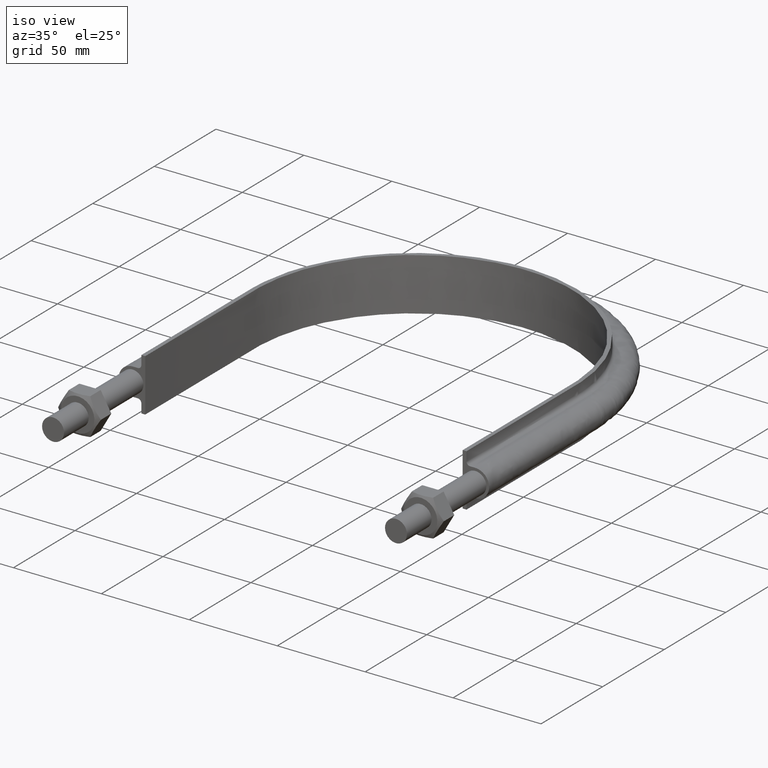
[diagram: clean part render]
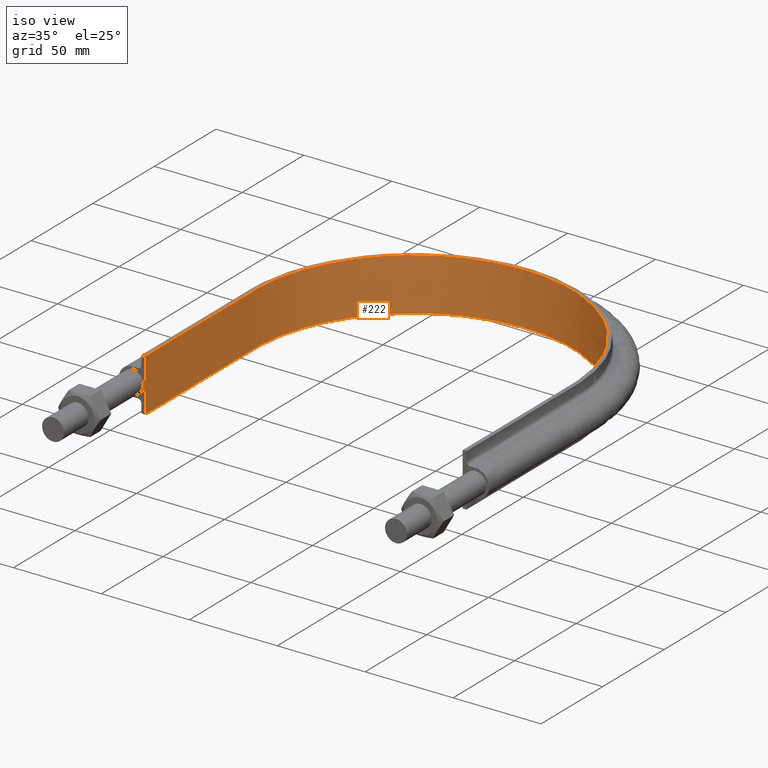
[diagram: tour spotlight — one face highlighted and labeled with its STEP entity id]
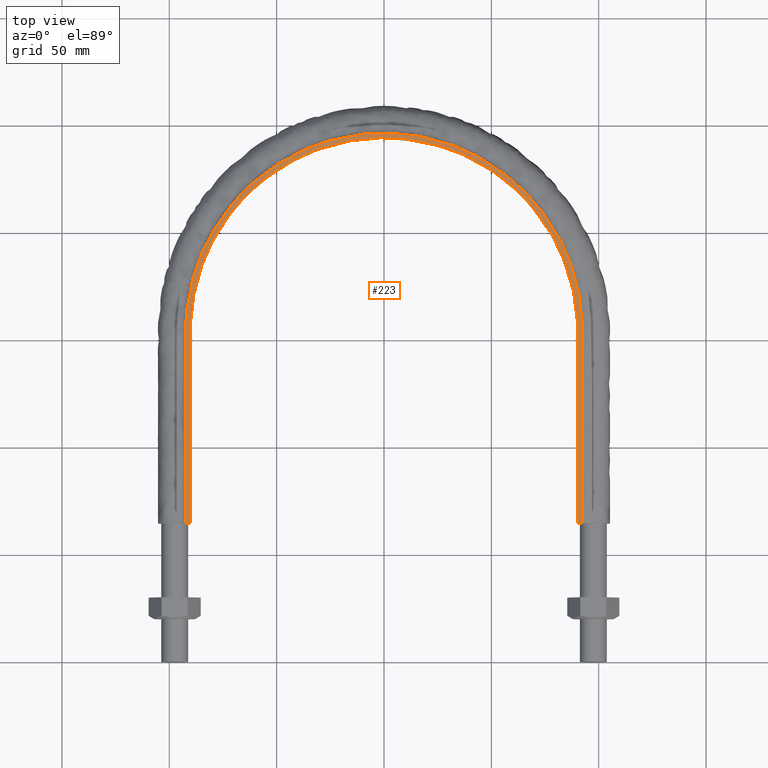
[diagram: tour spotlight — one face highlighted and labeled with its STEP entity id]
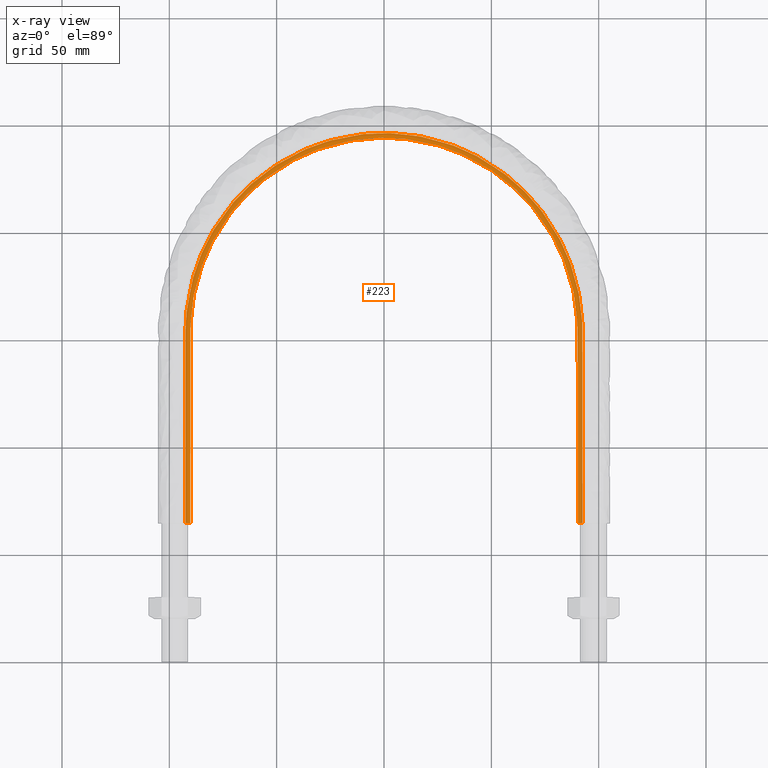
[diagram: x-ray of the same camera — body ghosted, this tour face saturated]
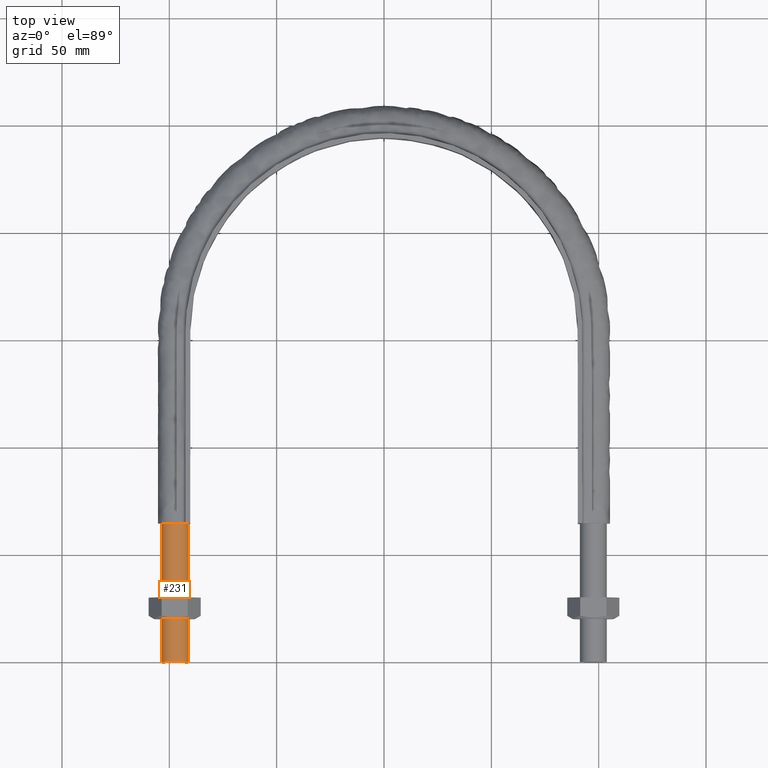
[diagram: tour spotlight — one face highlighted and labeled with its STEP entity id]
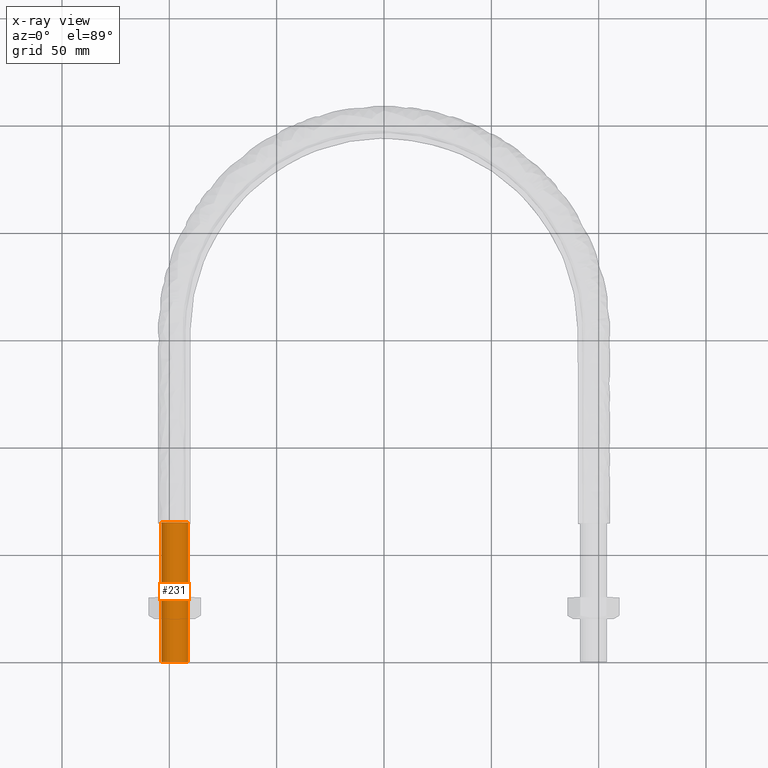
[diagram: x-ray of the same camera — body ghosted, this tour face saturated]
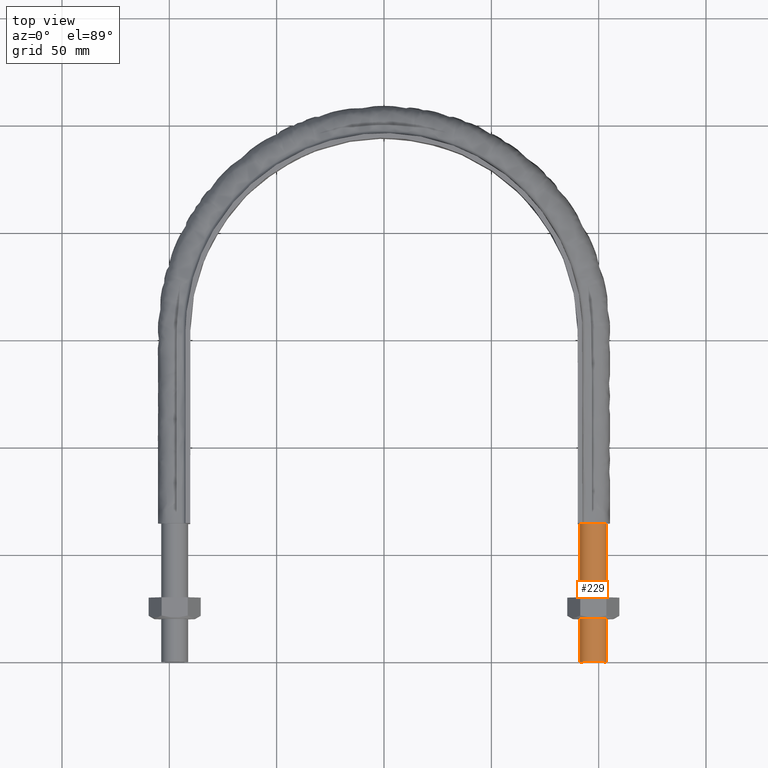
[diagram: tour spotlight — one face highlighted and labeled with its STEP entity id]
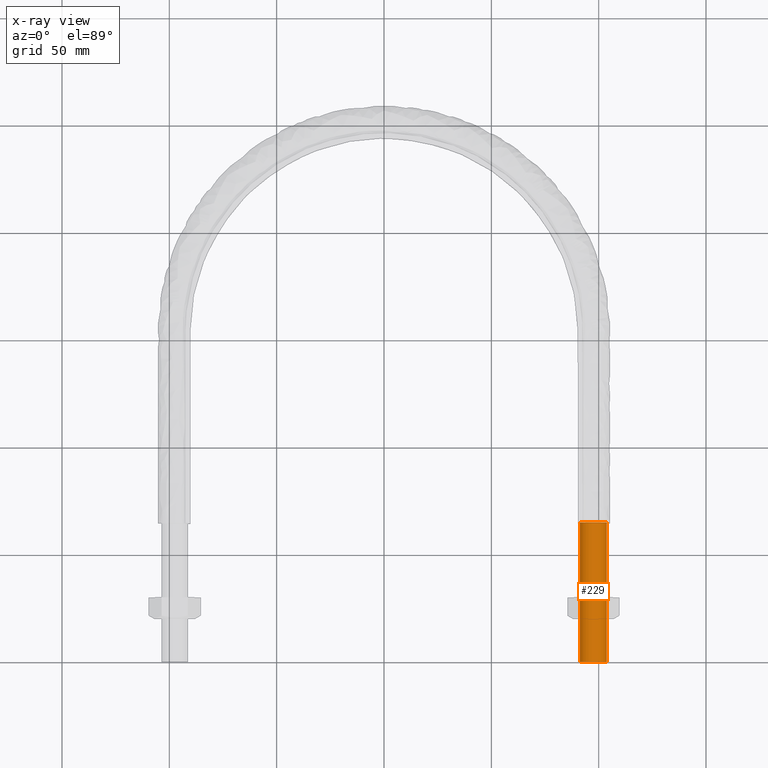
[diagram: x-ray of the same camera — body ghosted, this tour face saturated]
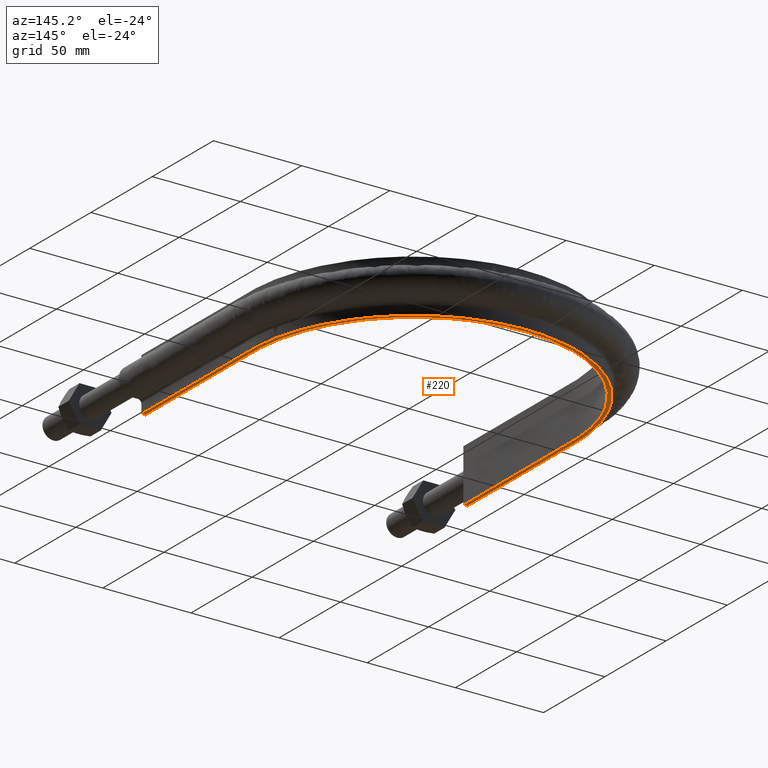
[diagram: tour spotlight — one face highlighted and labeled with its STEP entity id]
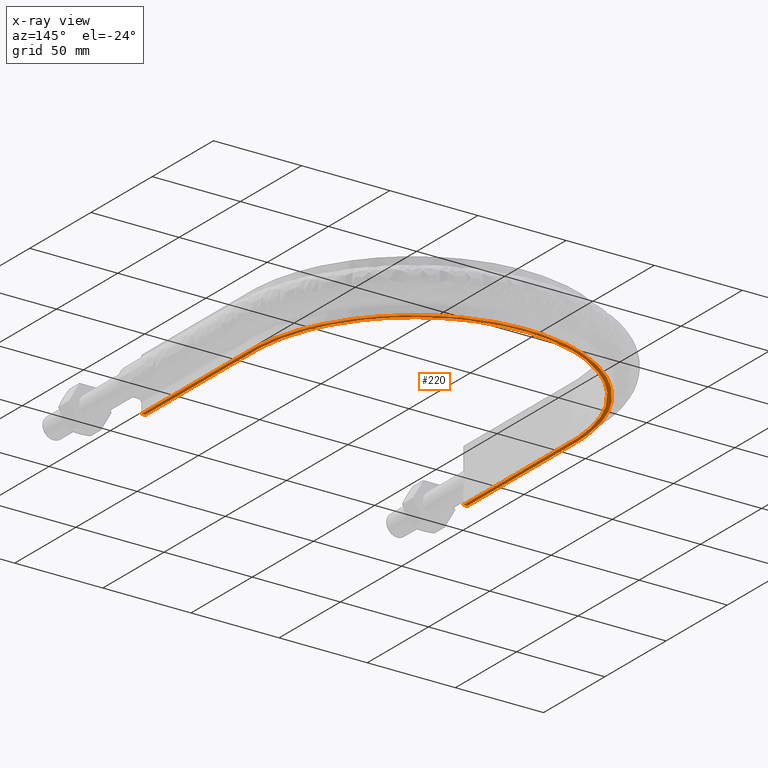
[diagram: x-ray of the same camera — body ghosted, this tour face saturated]
A machine part: a face-by-face anatomy tour. The part has 38 B-rep faces; the first image is the clean iso view, then the 5 largest visible faces are spotlighted one at a time (largest first), each with its STEP entity span.

Face 1 — iso view, entity #222. In plain terms, the highlighted face is a SurfaceOfExtrusion surface.
Definition (entity closure, byte-faithful):
#222 = ADVANCED_FACE( '', ( #266 ), #267, .T. );
#266 = FACE_OUTER_BOUND( '', #362, .T. );
#267 = SURFACE_OF_LINEAR_EXTRUSION( '', #363, #364 );
#362 = EDGE_LOOP( '', ( #1372, #1373, #1374, #1375 ) );
#363 = B_SPLINE_CURVE_WITH_KNOTS( '', 3, ( #1376, #1377, #1378, #1379, #1380, #1381, #1382, #1383, #1384, #1385, #1386, #1387, #1388, #1389, #1390, #1391, #1392 ), .UNSPECIFIED., .F., .F., ( 4, 3, 1, 1, 1, 1, 1, 1, 1, 3, 4 ), ( -10.0000000000000, -9.00000000000000, -8.00000000000000, -7.00000000000000, -6.00000000000000, -5.00000000000000, -4.00000000000000, -3.00000000000000, -2.00000000000000, -1.00000000000000, 0.000000000000000 ), .UNSPECIFIED. );
#364 = VECTOR( '', #1393, 1000.00000000000 );
#1372 = ORIENTED_EDGE( '', *, *, #1613, .F. );
#1373 = ORIENTED_EDGE( '', *, *, #1602, .F. );
#1374 = ORIENTED_EDGE( '', *, *, #1606, .T. );
#1375 = ORIENTED_EDGE( '', *, *, #1610, .T. );
#1376 = CARTESIAN_POINT( '', ( -90.2500000000000, 64.5000000000001, -300.578044679617 ) );
#1377 = CARTESIAN_POINT( '', ( -90.2500000000000, 94.2500000000001, -300.578044679617 ) );
#1378 = CARTESIAN_POINT( '', ( -90.2500000000000, 124.000000000000, -300.578044679617 ) );
#1379 = CARTESIAN_POINT( '', ( -90.2500000000000, 153.750000000000, -300.578044679617 ) );
#1380 = CARTESIAN_POINT( '', ( -90.2500000000000, 165.549592940319, -300.578044679617 ) );
#1381 = CARTESIAN_POINT( '', ( -85.5508514102795, 189.192133324021, -300.578044679617 ) );
#1382 = CARTESIAN_POINT( '', ( -65.4777869188832, 219.226222581144, -300.578044679617 ) );
#1383 = CARTESIAN_POINT( '', ( -35.4363229267033, 239.301298363920, -300.578044679617 ) );
#1384 = CARTESIAN_POINT( '', ( 2.41252241155008E-015, 246.349350818040, -300.578044679617 ) );
#1385 = CARTESIAN_POINT( '', ( 35.4363229267032, 239.301298363920, -300.578044679617 ) );
#1386 = CARTESIAN_POINT( '', ( 65.4777869188831, 219.226222581144, -300.578044679617 ) );
#1387 = CARTESIAN_POINT( '', ( 85.5508514102796, 189.192133324021, -300.578044679617 ) );
#1388 = CARTESIAN_POINT( '', ( 90.2499999999999, 165.549592940319, -300.578044679617 ) );
#1389 = CARTESIAN_POINT( '', ( 90.2499999999999, 153.750000000000, -300.578044679617 ) );
#1390 = CARTESIAN_POINT( '', ( 90.2499999999999, 124.000000000000, -300.578044679617 ) );
#1391 = CARTESIAN_POINT( '', ( 90.2499999999999, 94.2500000000000, -300.578044679617 ) );
#1392 = CARTESIAN_POINT( '', ( 90.2499999999999, 64.5000000000000, -300.578044679617 ) );
#1393 = DIRECTION( '', ( 0.000000000000000, 0.000000000000000, 1.00000000000000 ) );
#1602 = EDGE_CURVE( '', #1669, #1670, #1671, .T. );
#1606 = EDGE_CURVE( '', #1669, #1677, #1678, .T. );
#1610 = EDGE_CURVE( '', #1677, #1684, #1685, .T. );
#1613 = EDGE_CURVE( '', #1670, #1684, #1689, .T. );
#1669 = VERTEX_POINT( '', #1795 );
#1670 = VERTEX_POINT( '', #1796 );
#1671 = LINE( '', #1797, #1798 );
#1677 = VERTEX_POINT( '', #1836 );
#1678 = B_SPLINE_CURVE_WITH_KNOTS( '', 3, ( #1837, #1838, #1839, #1840, #1841, #1842, #1843, #1844, #1845, #1846, #1847, #1848, #1849, #1850, #1851, #1852, #1853 ), .UNSPECIFIED., .F., .F., ( 4, 3, 1, 1, 1, 1, 1, 1, 1, 3, 4 ), ( -10.0000000000000, -9.00000000000000, -8.00000000000000, -7.00000000000000, -6.00000000000000, -5.00000000000000, -4.00000000000000, -3.00000000000000, -2.00000000000000, -1.00000000000000, 0.000000000000000 ), .UNSPECIFIED. );
#1684 = VERTEX_POINT( '', #1886 );
#1685 = LINE( '', #1887, #1888 );
#1689 = B_SPLINE_CURVE_WITH_KNOTS( '', 3, ( #1923, #1924, #1925, #1926, #1927, #1928, #1929, #1930, #1931, #1932, #1933, #1934, #1935, #1936, #1937, #1938, #1939 ), .UNSPECIFIED., .F., .F., ( 4, 3, 1, 1, 1, 1, 1, 1, 1, 3, 4 ), ( -10.0000000000000, -9.00000000000000, -8.00000000000000, -7.00000000000000, -6.00000000000000, -5.00000000000000, -4.00000000000000, -3.00000000000000, -2.00000000000000, -1.00000000000000, 0.000000000000000 ), .UNSPECIFIED. );
#1795 = CARTESIAN_POINT( '', ( -90.2499999999999, 64.5000000000003, -15.0000000000000 ) );
#1796 = CARTESIAN_POINT( '', ( -90.2499999999999, 64.5000000000003, 15.0000000000000 ) );
#1797 = CARTESIAN_POINT( '', ( -90.2500000000000, 64.5000000000001, -300.578044679617 ) );
#1798 = VECTOR( '', #2225, 1000.00000000000 );
#1836 = CARTESIAN_POINT( '', ( 90.2499999999999, 64.5000000000000, -15.0000000000002 ) );
#1837 = CARTESIAN_POINT( '', ( -90.2500000000000, 64.5000000000001, -15.0000000000001 ) );
#1838 = CARTESIAN_POINT( '', ( -90.2500000000000, 94.2500000000001, -15.0000000000001 ) );
#1839 = CARTESIAN_POINT( '', ( -90.2500000000000, 124.000000000000, -15.0000000000001 ) );
#1840 = CARTESIAN_POINT( '', ( -90.2500000000000, 153.750000000000, -15.0000000000001 ) );
#1841 = CARTESIAN_POINT( '', ( -90.2500000000000, 165.549592940319, -15.0000000000001 ) );
#1842 = CARTESIAN_POINT( '', ( -85.5508514102795, 189.192133324021, -15.0000000000001 ) );
#1843 = CARTESIAN_POINT( '', ( -65.4777869188832, 219.226222581144, -15.0000000000001 ) );
#1844 = CARTESIAN_POINT( '', ( -35.4363229267033, 239.301298363920, -15.0000000000001 ) );
#1845 = CARTESIAN_POINT( '', ( 2.41252241155008E-015, 246.349350818040, -15.0000000000001 ) );
#1846 = CARTESIAN_POINT( '', ( 35.4363229267032, 239.301298363920, -15.0000000000001 ) );
#1847 = CARTESIAN_POINT( '', ( 65.4777869188831, 219.226222581144, -15.0000000000001 ) );
#1848 = CARTESIAN_POINT( '', ( 85.5508514102796, 189.192133324021, -15.0000000000001 ) );
#1849 = CARTESIAN_POINT( '', ( 90.2499999999999, 165.549592940319, -15.0000000000001 ) );
#1850 = CARTESIAN_POINT( '', ( 90.2499999999999, 153.750000000000, -15.0000000000001 ) );
#1851 = CARTESIAN_POINT( '', ( 90.2499999999999, 124.000000000000, -15.0000000000001 ) );
#1852 = CARTESIAN_POINT( '', ( 90.2499999999999, 94.2500000000000, -15.0000000000001 ) );
#1853 = CARTESIAN_POINT( '', ( 90.2499999999999, 64.5000000000000, -15.0000000000001 ) );
#1886 = CARTESIAN_POINT( '', ( 90.2500000000002, 64.5000000000003, 15.0000000000000 ) );
#1887 = CARTESIAN_POINT( '', ( 90.2499999999999, 64.5000000000000, -300.578044679617 ) );
#1888 = VECTOR( '', #2229, 1000.00000000000 );
#1923 = CARTESIAN_POINT( '', ( -90.2500000000000, 64.5000000000001, 14.9999999999999 ) );
#1924 = CARTESIAN_POINT( '', ( -90.2500000000000, 94.2500000000001, 14.9999999999999 ) );
#1925 = CARTESIAN_POINT( '', ( -90.2500000000000, 124.000000000000, 14.9999999999999 ) );
#1926 = CARTESIAN_POINT( '', ( -90.2500000000000, 153.750000000000, 14.9999999999999 ) );
#1927 = CARTESIAN_POINT( '', ( -90.2500000000000, 165.549592940319, 14.9999999999999 ) );
#1928 = CARTESIAN_POINT( '', ( -85.5508514102795, 189.192133324021, 14.9999999999999 ) );
#1929 = CARTESIAN_POINT( '', ( -65.4777869188832, 219.226222581144, 14.9999999999999 ) );
#1930 = CARTESIAN_POINT( '', ( -35.4363229267033, 239.301298363920, 14.9999999999999 ) );
#1931 = CARTESIAN_POINT( '', ( 2.41252241155008E-015, 246.349350818040, 14.9999999999999 ) );
#1932 = CARTESIAN_POINT( '', ( 35.4363229267032, 239.301298363920, 14.9999999999999 ) );
#1933 = CARTESIAN_POINT( '', ( 65.4777869188831, 219.226222581144, 14.9999999999999 ) );
#1934 = CARTESIAN_POINT( '', ( 85.5508514102796, 189.192133324021, 14.9999999999999 ) );
#1935 = CARTESIAN_POINT( '', ( 90.2499999999999, 165.549592940319, 14.9999999999999 ) );
#1936 = CARTESIAN_POINT( '', ( 90.2499999999999, 153.750000000000, 14.9999999999999 ) );
#1937 = CARTESIAN_POINT( '', ( 90.2499999999999, 124.000000000000, 14.9999999999999 ) );
#1938 = CARTESIAN_POINT( '', ( 90.2499999999999, 94.2500000000000, 14.9999999999999 ) );
#1939 = CARTESIAN_POINT( '', ( 90.2499999999999, 64.5000000000000, 14.9999999999999 ) );
#2225 = DIRECTION( '', ( 0.000000000000000, 0.000000000000000, 1.00000000000000 ) );
#2229 = DIRECTION( '', ( 0.000000000000000, 0.000000000000000, 1.00000000000000 ) );

Face 2 — top view, entity #223. An x-ray twin of the same camera follows (body ghosted, this face saturated) — the face is partly hidden behind the body. In plain terms, the highlighted planar face has unit normal (0, 0, 1).
Definition (entity closure, byte-faithful):
#223 = ADVANCED_FACE( '', ( #268 ), #269, .T. );
#268 = FACE_OUTER_BOUND( '', #365, .T. );
#269 = PLANE( '', #366 );
#365 = EDGE_LOOP( '', ( #1394, #1395, #1396, #1397 ) );
#366 = AXIS2_PLACEMENT_3D( '', #1398, #1399, #1400 );
#1394 = ORIENTED_EDGE( '', *, *, #1603, .T. );
#1395 = ORIENTED_EDGE( '', *, *, #1613, .T. );
#1396 = ORIENTED_EDGE( '', *, *, #1612, .T. );
#1397 = ORIENTED_EDGE( '', *, *, #1614, .F. );
#1398 = CARTESIAN_POINT( '', ( 150.000000000000, 364.500000000000, 15.0000000000000 ) );
#1399 = DIRECTION( '', ( 0.000000000000000, 0.000000000000000, 1.00000000000000 ) );
#1400 = DIRECTION( '', ( 1.22460635382238E-016, 1.00000000000000, 0.000000000000000 ) );
#1603 = EDGE_CURVE( '', #1672, #1670, #1673, .T. );
#1612 = EDGE_CURVE( '', #1684, #1686, #1688, .T. );
#1613 = EDGE_CURVE( '', #1670, #1684, #1689, .T. );
#1614 = EDGE_CURVE( '', #1672, #1686, #1690, .F. );
#1670 = VERTEX_POINT( '', #1796 );
#1672 = VERTEX_POINT( '', #1799 );
#1673 = LINE( '', #1800, #1801 );
#1684 = VERTEX_POINT( '', #1886 );
#1686 = VERTEX_POINT( '', #1889 );
#1688 = LINE( '', #1921, #1922 );
#1689 = B_SPLINE_CURVE_WITH_KNOTS( '', 3, ( #1923, #1924, #1925, #1926, #1927, #1928, #1929, #1930, #1931, #1932, #1933, #1934, #1935, #1936, #1937, #1938, #1939 ), .UNSPECIFIED., .F., .F., ( 4, 3, 1, 1, 1, 1, 1, 1, 1, 3, 4 ), ( -10.0000000000000, -9.00000000000000, -8.00000000000000, -7.00000000000000, -6.00000000000000, -5.00000000000000, -4.00000000000000, -3.00000000000000, -2.00000000000000, -1.00000000000000, 0.000000000000000 ), .UNSPECIFIED. );
#1690 = B_SPLINE_CURVE_WITH_KNOTS( '', 3, ( #1940, #1941, #1942, #1943, #1944, #1945, #1946, #1947, #1948, #1949, #1950, #1951, #1952, #1953, #1954, #1955, #1956 ), .UNSPECIFIED., .F., .F., ( 4, 3, 1, 1, 1, 1, 1, 1, 1, 3, 4 ), ( 0.000000000000000, 1.00000000000000, 2.00000000000000, 3.00000000000000, 4.00000000000000, 5.00000000000000, 6.00000000000000, 7.00000000000000, 8.00000000000000, 9.00000000000000, 10.0000000000000 ), .UNSPECIFIED. );
#1796 = CARTESIAN_POINT( '', ( -90.2499999999999, 64.5000000000003, 15.0000000000000 ) );
#1799 = CARTESIAN_POINT( '', ( -92.4499999999999, 64.5000000000003, 15.0000000000000 ) );
#1800 = CARTESIAN_POINT( '', ( -150.000000000000, 64.5000000000003, 15.0000000000000 ) );
#1801 = VECTOR( '', #2226, 1000.00000000000 );
#1886 = CARTESIAN_POINT( '', ( 90.2500000000002, 64.5000000000003, 15.0000000000000 ) );
#1889 = CARTESIAN_POINT( '', ( 92.4500000000002, 64.5000000000003, 15.0000000000000 ) );
#1921 = CARTESIAN_POINT( '', ( -150.000000000000, 64.5000000000003, 15.0000000000000 ) );
#1922 = VECTOR( '', #2230, 1000.00000000000 );
#1923 = CARTESIAN_POINT( '', ( -90.2500000000000, 64.5000000000001, 14.9999999999999 ) );
#1924 = CARTESIAN_POINT( '', ( -90.2500000000000, 94.2500000000001, 14.9999999999999 ) );
#1925 = CARTESIAN_POINT( '', ( -90.2500000000000, 124.000000000000, 14.9999999999999 ) );
#1926 = CARTESIAN_POINT( '', ( -90.2500000000000, 153.750000000000, 14.9999999999999 ) );
#1927 = CARTESIAN_POINT( '', ( -90.2500000000000, 165.549592940319, 14.9999999999999 ) );
#1928 = CARTESIAN_POINT( '', ( -85.5508514102795, 189.192133324021, 14.9999999999999 ) );
#1929 = CARTESIAN_POINT( '', ( -65.4777869188832, 219.226222581144, 14.9999999999999 ) );
#1930 = CARTESIAN_POINT( '', ( -35.4363229267033, 239.301298363920, 14.9999999999999 ) );
#1931 = CARTESIAN_POINT( '', ( 2.41252241155008E-015, 246.349350818040, 14.9999999999999 ) );
#1932 = CARTESIAN_POINT( '', ( 35.4363229267032, 239.301298363920, 14.9999999999999 ) );
#1933 = CARTESIAN_POINT( '', ( 65.4777869188831, 219.226222581144, 14.9999999999999 ) );
#1934 = CARTESIAN_POINT( '', ( 85.5508514102796, 189.192133324021, 14.9999999999999 ) );
#1935 = CARTESIAN_POINT( '', ( 90.2499999999999, 165.549592940319, 14.9999999999999 ) );
#1936 = CARTESIAN_POINT( '', ( 90.2499999999999, 153.750000000000, 14.9999999999999 ) );
#1937 = CARTESIAN_POINT( '', ( 90.2499999999999, 124.000000000000, 14.9999999999999 ) );
#1938 = CARTESIAN_POINT( '', ( 90.2499999999999, 94.2500000000000, 14.9999999999999 ) );
#1939 = CARTESIAN_POINT( '', ( 90.2499999999999, 64.5000000000000, 14.9999999999999 ) );
#1940 = CARTESIAN_POINT( '', ( 92.4500000000000, 64.5000000000000, 15.0000000000000 ) );
#1941 = CARTESIAN_POINT( '', ( 92.4500000000000, 94.2500000000000, 15.0000000000000 ) );
#1942 = CARTESIAN_POINT( '', ( 92.4500000000000, 124.000000000000, 15.0000000000000 ) );
#1943 = CARTESIAN_POINT( '', ( 92.4500000000000, 153.750000000000, 15.0000000000000 ) );
#1944 = CARTESIAN_POINT( '', ( 92.4500000000000, 165.841331079143, 15.0000000000000 ) );
#1945 = CARTESIAN_POINT( '', ( 87.6363015277601, 190.054191891286, 15.0000000000000 ) );
#1946 = CARTESIAN_POINT( '', ( 67.0739213368504, 220.822831694701, 15.0000000000000 ) );
#1947 = CARTESIAN_POINT( '', ( 36.3001446490162, 241.386612854088, 15.0000000000000 ) );
#1948 = CARTESIAN_POINT( '', ( 5.47306623188967E-014, 248.606693572956, 15.0000000000000 ) );
#1949 = CARTESIAN_POINT( '', ( -36.3001446490162, 241.386612854089, 15.0000000000000 ) );
#1950 = CARTESIAN_POINT( '', ( -67.0739213368504, 220.822831694701, 15.0000000000000 ) );
#1951 = CARTESIAN_POINT( '', ( -87.6363015277601, 190.054191891286, 15.0000000000000 ) );
#1952 = CARTESIAN_POINT( '', ( -92.4500000000000, 165.841331079143, 15.0000000000000 ) );
#1953 = CARTESIAN_POINT( '', ( -92.4500000000000, 153.750000000000, 15.0000000000000 ) );
#1954 = CARTESIAN_POINT( '', ( -92.4499999999999, 124.000000000000, 15.0000000000000 ) );
#1955 = CARTESIAN_POINT( '', ( -92.4499999999999, 94.2500000000000, 15.0000000000000 ) );
#1956 = CARTESIAN_POINT( '', ( -92.4500000000000, 64.5000000000001, 15.0000000000000 ) );
#2226 = DIRECTION( '', ( 1.00000000000000, -1.22460635382238E-016, 0.000000000000000 ) );
#2230 = DIRECTION( '', ( 1.00000000000000, -1.22460635382238E-016, 0.000000000000000 ) );

Face 3 — top view, entity #231. An x-ray twin of the same camera follows (body ghosted, this face saturated) — the face is partly hidden behind the body. In plain terms, the highlighted cylindrical surface (bore or boss wall) has radius 6.25 mm, axis along (0, 1, 0).
Definition (entity closure, byte-faithful):
#231 = ADVANCED_FACE( '', ( #288, #289 ), #290, .T. );
#288 = FACE_OUTER_BOUND( '', #1283, .T. );
#289 = FACE_OUTER_BOUND( '', #1284, .T. );
#290 = CYLINDRICAL_SURFACE( '', #1285, 6.25000000000001 );
#1283 = EDGE_LOOP( '', ( #1427 ) );
#1284 = EDGE_LOOP( '', ( #1428 ) );
#1285 = AXIS2_PLACEMENT_3D( '', #1429, #1430, #1431 );
#1427 = ORIENTED_EDGE( '', *, *, #1620, .T. );
#1428 = ORIENTED_EDGE( '', *, *, #1619, .F. );
#1429 = CARTESIAN_POINT( '', ( -97.5000000000000, 65.0000000000000, 1.19399119497682E-014 ) );
#1430 = DIRECTION( '', ( 1.22460635382238E-016, 1.00000000000000, 1.83690953073357E-016 ) );
#1431 = DIRECTION( '', ( -1.00000000000000, 1.22460635382238E-016, 0.000000000000000 ) );
#1619 = EDGE_CURVE( '', #1699, #1699, #1700, .T. );
#1620 = EDGE_CURVE( '', #1701, #1701, #1702, .T. );
#1699 = VERTEX_POINT( '', #1985 );
#1700 = CIRCLE( '', #1986, 6.25000000000001 );
#1701 = VERTEX_POINT( '', #1987 );
#1702 = CIRCLE( '', #1988, 6.25000000000001 );
#1985 = CARTESIAN_POINT( '', ( -103.750000000000, 1.27052909209072E-014, 0.000000000000000 ) );
#1986 = AXIS2_PLACEMENT_3D( '', #2237, #2238, #2239 );
#1987 = CARTESIAN_POINT( '', ( -103.750000000000, 65.0000000000000, 1.19399119497682E-014 ) );
#1988 = AXIS2_PLACEMENT_3D( '', #2240, #2241, #2242 );
#2237 = CARTESIAN_POINT( '', ( -97.5000000000000, 1.19399119497682E-014, 0.000000000000000 ) );
#2238 = DIRECTION( '', ( -1.22460635382238E-016, -1.00000000000000, -1.83690953073357E-016 ) );
#2239 = DIRECTION( '', ( -1.00000000000000, 1.22460635382238E-016, 0.000000000000000 ) );
#2240 = CARTESIAN_POINT( '', ( -97.5000000000000, 65.0000000000000, 1.19399119497682E-014 ) );
#2241 = DIRECTION( '', ( -1.22460635382238E-016, -1.00000000000000, -1.83690953073357E-016 ) );
#2242 = DIRECTION( '', ( -1.00000000000000, 1.22460635382238E-016, 0.000000000000000 ) );

Face 4 — top view, entity #229. An x-ray twin of the same camera follows (body ghosted, this face saturated) — the face is partly hidden behind the body. In plain terms, the highlighted cylindrical surface (bore or boss wall) has radius 6.25 mm, axis along (0, 1, 0).
Definition (entity closure, byte-faithful):
#229 = ADVANCED_FACE( '', ( #283, #284 ), #285, .T. );
#283 = FACE_OUTER_BOUND( '', #1278, .T. );
#284 = FACE_OUTER_BOUND( '', #1279, .T. );
#285 = CYLINDRICAL_SURFACE( '', #1280, 6.25000000000001 );
#1278 = EDGE_LOOP( '', ( #1418 ) );
#1279 = EDGE_LOOP( '', ( #1419 ) );
#1280 = AXIS2_PLACEMENT_3D( '', #1420, #1421, #1422 );
#1418 = ORIENTED_EDGE( '', *, *, #1617, .T. );
#1419 = ORIENTED_EDGE( '', *, *, #1618, .F. );
#1420 = CARTESIAN_POINT( '', ( 97.5000000000000, 65.0000000000000, 1.19399119497682E-014 ) );
#1421 = DIRECTION( '', ( 1.22460635382238E-016, 1.00000000000000, 1.83690953073357E-016 ) );
#1422 = DIRECTION( '', ( -1.00000000000000, 1.22460635382238E-016, 0.000000000000000 ) );
#1617 = EDGE_CURVE( '', #1695, #1695, #1696, .T. );
#1618 = EDGE_CURVE( '', #1697, #1697, #1698, .T. );
#1695 = VERTEX_POINT( '', #1981 );
#1696 = CIRCLE( '', #1982, 6.25000000000001 );
#1697 = VERTEX_POINT( '', #1983 );
#1698 = CIRCLE( '', #1984, 6.25000000000001 );
#1981 = CARTESIAN_POINT( '', ( 91.2500000000000, 65.0000000000000, 1.19399119497682E-014 ) );
#1982 = AXIS2_PLACEMENT_3D( '', #2231, #2232, #2233 );
#1983 = CARTESIAN_POINT( '', ( 91.2500000000000, -1.11745329786292E-014, 0.000000000000000 ) );
#1984 = AXIS2_PLACEMENT_3D( '', #2234, #2235, #2236 );
#2231 = CARTESIAN_POINT( '', ( 97.5000000000000, 65.0000000000000, 1.19399119497682E-014 ) );
#2232 = DIRECTION( '', ( -1.22460635382238E-016, -1.00000000000000, -1.83690953073357E-016 ) );
#2233 = DIRECTION( '', ( -1.00000000000000, 1.22460635382238E-016, 0.000000000000000 ) );
#2234 = CARTESIAN_POINT( '', ( 97.5000000000000, -1.19399119497682E-014, 0.000000000000000 ) );
#2235 = DIRECTION( '', ( -1.22460635382238E-016, -1.00000000000000, -1.83690953073357E-016 ) );
#2236 = DIRECTION( '', ( -1.00000000000000, 1.22460635382238E-016, 0.000000000000000 ) );

Face 5 — auxiliary view, entity #220. An x-ray twin of the same camera follows (body ghosted, this face saturated) — the face is partly hidden behind the body. In plain terms, the highlighted planar face has unit normal (0, 0, 1).
Definition (entity closure, byte-faithful):
#220 = ADVANCED_FACE( '', ( #261 ), #262, .F. );
#261 = FACE_OUTER_BOUND( '', #357, .T. );
#262 = PLANE( '', #358 );
#357 = EDGE_LOOP( '', ( #1357, #1358, #1359, #1360 ) );
#358 = AXIS2_PLACEMENT_3D( '', #1361, #1362, #1363 );
#1357 = ORIENTED_EDGE( '', *, *, #1606, .F. );
#1358 = ORIENTED_EDGE( '', *, *, #1605, .F. );
#1359 = ORIENTED_EDGE( '', *, *, #1607, .F. );
#1360 = ORIENTED_EDGE( '', *, *, #1608, .F. );
#1361 = CARTESIAN_POINT( '', ( 150.000000000000, 364.500000000000, -15.0000000000000 ) );
#1362 = DIRECTION( '', ( 0.000000000000000, 0.000000000000000, 1.00000000000000 ) );
#1363 = DIRECTION( '', ( 1.22460635382238E-016, 1.00000000000000, 0.000000000000000 ) );
#1605 = EDGE_CURVE( '', #1674, #1669, #1676, .T. );
#1606 = EDGE_CURVE( '', #1669, #1677, #1678, .T. );
#1607 = EDGE_CURVE( '', #1679, #1674, #1680, .T. );
#1608 = EDGE_CURVE( '', #1677, #1679, #1681, .T. );
#1669 = VERTEX_POINT( '', #1795 );
#1674 = VERTEX_POINT( '', #1802 );
#1676 = LINE( '', #1834, #1835 );
#1677 = VERTEX_POINT( '', #1836 );
#1678 = B_SPLINE_CURVE_WITH_KNOTS( '', 3, ( #1837, #1838, #1839, #1840, #1841, #1842, #1843, #1844, #1845, #1846, #1847, #1848, #1849, #1850, #1851, #1852, #1853 ), .UNSPECIFIED., .F., .F., ( 4, 3, 1, 1, 1, 1, 1, 1, 1, 3, 4 ), ( -10.0000000000000, -9.00000000000000, -8.00000000000000, -7.00000000000000, -6.00000000000000, -5.00000000000000, -4.00000000000000, -3.00000000000000, -2.00000000000000, -1.00000000000000, 0.000000000000000 ), .UNSPECIFIED. );
#1679 = VERTEX_POINT( '', #1854 );
#1680 = B_SPLINE_CURVE_WITH_KNOTS( '', 3, ( #1855, #1856, #1857, #1858, #1859, #1860, #1861, #1862, #1863, #1864, #1865, #1866, #1867, #1868, #1869, #1870, #1871 ), .UNSPECIFIED., .F., .F., ( 4, 3, 1, 1, 1, 1, 1, 1, 1, 3, 4 ), ( 0.000000000000000, 1.00000000000000, 2.00000000000000, 3.00000000000000, 4.00000000000000, 5.00000000000000, 6.00000000000000, 7.00000000000000, 8.00000000000000, 9.00000000000000, 10.0000000000000 ), .UNSPECIFIED. );
#1681 = LINE( '', #1872, #1873 );
#1795 = CARTESIAN_POINT( '', ( -90.2499999999999, 64.5000000000003, -15.0000000000000 ) );
#1802 = CARTESIAN_POINT( '', ( -92.4499999999999, 64.5000000000003, -15.0000000000000 ) );
#1834 = CARTESIAN_POINT( '', ( -150.000000000000, 64.5000000000003, -15.0000000000000 ) );
#1835 = VECTOR( '', #2227, 1000.00000000000 );
#1836 = CARTESIAN_POINT( '', ( 90.2499999999999, 64.5000000000000, -15.0000000000002 ) );
#1837 = CARTESIAN_POINT( '', ( -90.2500000000000, 64.5000000000001, -15.0000000000001 ) );
#1838 = CARTESIAN_POINT( '', ( -90.2500000000000, 94.2500000000001, -15.0000000000001 ) );
#1839 = CARTESIAN_POINT( '', ( -90.2500000000000, 124.000000000000, -15.0000000000001 ) );
#1840 = CARTESIAN_POINT( '', ( -90.2500000000000, 153.750000000000, -15.0000000000001 ) );
#1841 = CARTESIAN_POINT( '', ( -90.2500000000000, 165.549592940319, -15.0000000000001 ) );
#1842 = CARTESIAN_POINT( '', ( -85.5508514102795, 189.192133324021, -15.0000000000001 ) );
#1843 = CARTESIAN_POINT( '', ( -65.4777869188832, 219.226222581144, -15.0000000000001 ) );
#1844 = CARTESIAN_POINT( '', ( -35.4363229267033, 239.301298363920, -15.0000000000001 ) );
#1845 = CARTESIAN_POINT( '', ( 2.41252241155008E-015, 246.349350818040, -15.0000000000001 ) );
#1846 = CARTESIAN_POINT( '', ( 35.4363229267032, 239.301298363920, -15.0000000000001 ) );
#1847 = CARTESIAN_POINT( '', ( 65.4777869188831, 219.226222581144, -15.0000000000001 ) );
#1848 = CARTESIAN_POINT( '', ( 85.5508514102796, 189.192133324021, -15.0000000000001 ) );
#1849 = CARTESIAN_POINT( '', ( 90.2499999999999, 165.549592940319, -15.0000000000001 ) );
#1850 = CARTESIAN_POINT( '', ( 90.2499999999999, 153.750000000000, -15.0000000000001 ) );
#1851 = CARTESIAN_POINT( '', ( 90.2499999999999, 124.000000000000, -15.0000000000001 ) );
#1852 = CARTESIAN_POINT( '', ( 90.2499999999999, 94.2500000000000, -15.0000000000001 ) );
#1853 = CARTESIAN_POINT( '', ( 90.2499999999999, 64.5000000000000, -15.0000000000001 ) );
#1854 = CARTESIAN_POINT( '', ( 92.4500000000002, 64.5000000000003, -15.0000000000000 ) );
#1855 = CARTESIAN_POINT( '', ( 92.4500000000000, 64.5000000000000, -15.0000000000000 ) );
#1856 = CARTESIAN_POINT( '', ( 92.4500000000000, 94.2500000000000, -15.0000000000000 ) );
#1857 = CARTESIAN_POINT( '', ( 92.4500000000000, 124.000000000000, -15.0000000000000 ) );
#1858 = CARTESIAN_POINT( '', ( 92.4500000000000, 153.750000000000, -15.0000000000000 ) );
#1859 = CARTESIAN_POINT( '', ( 92.4500000000000, 165.841331079143, -15.0000000000000 ) );
#1860 = CARTESIAN_POINT( '', ( 87.6363015277602, 190.054191891286, -15.0000000000000 ) );
#1861 = CARTESIAN_POINT( '', ( 67.0739213368505, 220.822831694701, -15.0000000000000 ) );
#1862 = CARTESIAN_POINT( '', ( 36.3001446490162, 241.386612854088, -15.0000000000000 ) );
#1863 = CARTESIAN_POINT( '', ( 6.16695562228040E-014, 248.606693572956, -15.0000000000000 ) );
#1864 = CARTESIAN_POINT( '', ( -36.3001446490162, 241.386612854089, -15.0000000000000 ) );
#1865 = CARTESIAN_POINT( '', ( -67.0739213368504, 220.822831694701, -15.0000000000000 ) );
#1866 = CARTESIAN_POINT( '', ( -87.6363015277601, 190.054191891286, -15.0000000000000 ) );
#1867 = CARTESIAN_POINT( '', ( -92.4500000000000, 165.841331079143, -15.0000000000000 ) );
#1868 = CARTESIAN_POINT( '', ( -92.4500000000000, 153.750000000000, -15.0000000000000 ) );
#1869 = CARTESIAN_POINT( '', ( -92.4499999999999, 124.000000000000, -15.0000000000000 ) );
#1870 = CARTESIAN_POINT( '', ( -92.4499999999999, 94.2500000000000, -15.0000000000000 ) );
#1871 = CARTESIAN_POINT( '', ( -92.4500000000000, 64.5000000000001, -15.0000000000000 ) );
#1872 = CARTESIAN_POINT( '', ( -150.000000000000, 64.5000000000003, -15.0000000000000 ) );
#1873 = VECTOR( '', #2228, 1000.00000000000 );
#2227 = DIRECTION( '', ( 1.00000000000000, -1.22460635382238E-016, 0.000000000000000 ) );
#2228 = DIRECTION( '', ( 1.00000000000000, -1.22460635382238E-016, 0.000000000000000 ) );